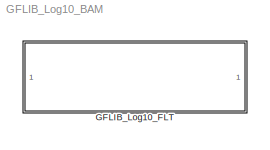
MODEL GFLIB_Log10_BAM
KIND model
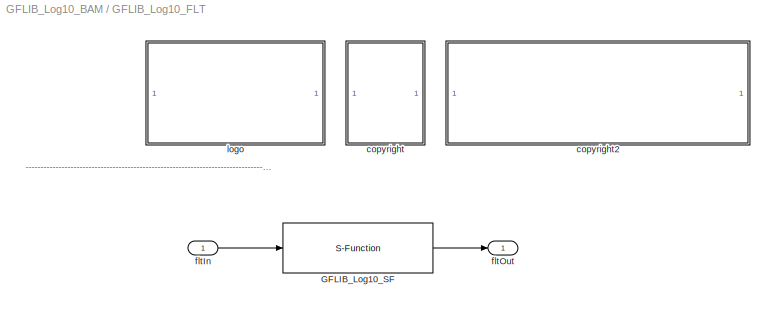
BLOCK [SubSystem] GFLIB_Log10_FLT
  Ports = [1, 1]
  RequestExecContextInheritance = off
  SID = 1
BLOCK [S-Function] GFLIB_Log10_FLT/GFLIB_Log10_SF
  EnableBusSupport = off
  FunctionName = GFLIB_Log10_SF_FLT
  Ports = [1, 1]
  SID = 4
BLOCK [SubSystem] GFLIB_Log10_FLT/<copyright redacted>
  Ports = []
  RequestExecContextInheritance = off
  SID = 11
BLOCK [SubSystem] GFLIB_Log10_FLT/copyright2
  Ports = []
  RequestExecContextInheritance = off
  SID = 14
BLOCK [Inport] GFLIB_Log10_FLT/fltIn
  IconDisplay = Port number
  SID = 5
BLOCK [Outport] GFLIB_Log10_FLT/fltOut
  IconDisplay = Port number
  SID = 6
BLOCK [SubSystem] GFLIB_Log10_FLT/logo
  Ports = []
  RequestExecContextInheritance = off
  SID = 7
ANNOTATION GFLIB_Log10_FLT: ---------------------------------------------------------------------------------------------------------------------------------------------------------------------------------------------------
LINE GFLIB_Log10_FLT/GFLIB_Log10_SF:1 -> GFLIB_Log10_FLT/fltOut:1
LINE GFLIB_Log10_FLT/fltIn:1 -> GFLIB_Log10_FLT/GFLIB_Log10_SF:1
